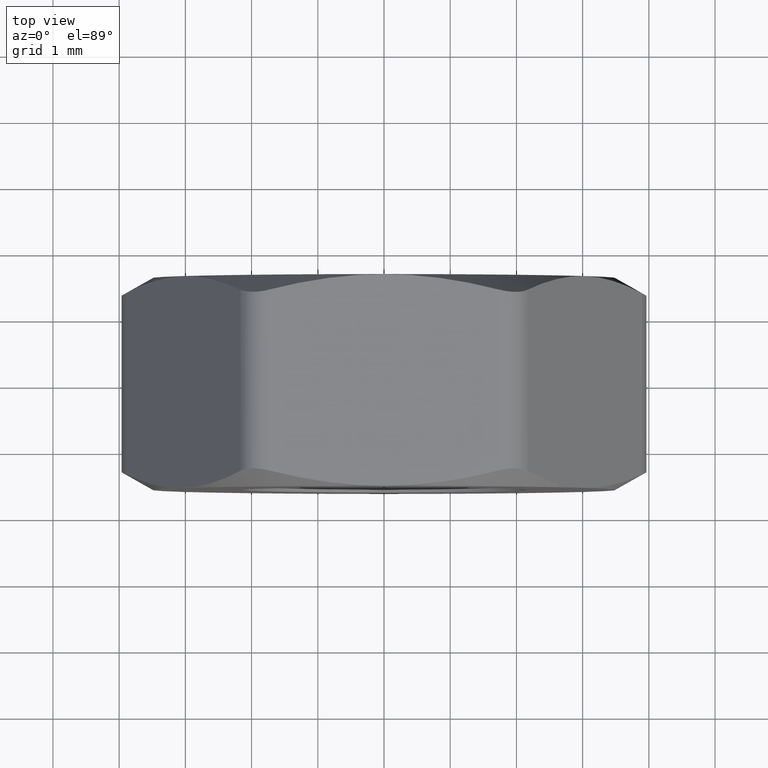
[diagram: clean part render]
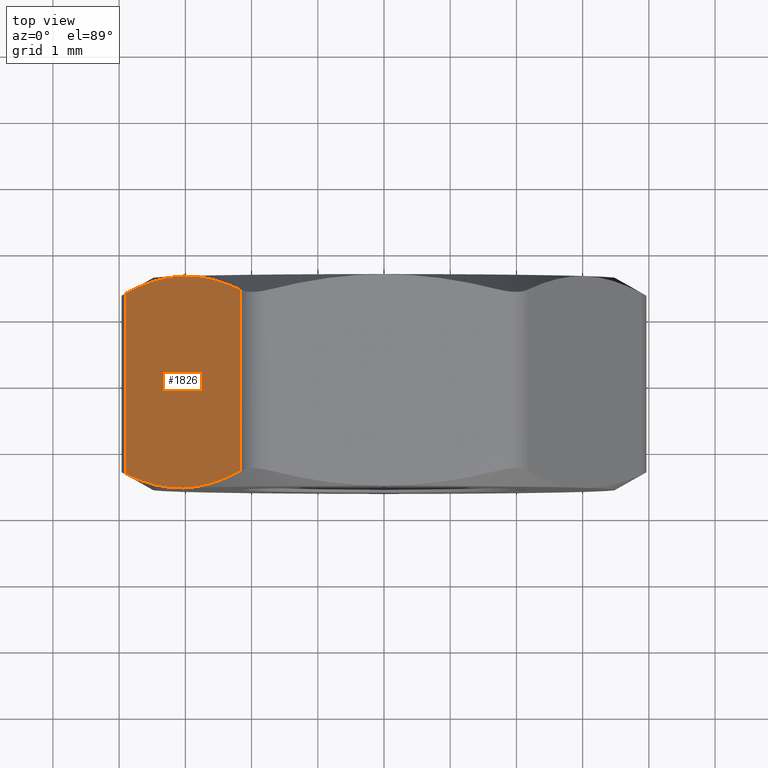
[diagram: same view with one face highlighted and labeled with its STEP entity id]
A machine part, top view. The second image highlights one B-rep face of the part: STEP entity #1826.
In plain terms, the highlighted planar face has unit normal (0.866, 0, -0.5).
Its self-contained STEP definition (entity closure, byte-faithful):
#172 = EDGE_CURVE ( 'NONE', #199, #1437, #639, .T. ) ;
#188 = CARTESIAN_POINT ( 'NONE',  ( -3.324242401370074000, 1.578227301213952500, 1.242243264152262500 ) ) ;
#199 = VERTEX_POINT ( 'NONE', #336 ) ;
#281 = CARTESIAN_POINT ( 'NONE',  ( -3.031088913245535200, -1.599999999999998500, 1.750000000000000700 ) ) ;
#287 = CARTESIAN_POINT ( 'NONE',  ( -2.165063509461098600, -1.366101065752245000, 3.249999999999998700 ) ) ;
#327 = CARTESIAN_POINT ( 'NONE',  ( -3.031088913245535200, -1.599999999999998500, 1.750000000000000700 ) ) ;
#336 = CARTESIAN_POINT ( 'NONE',  ( -3.897114317033262100, -1.366101065750560800, 0.2499999999943070800 ) ) ;
#392 = EDGE_CURVE ( 'NONE', #1437, #1464, #1167, .T. ) ;
#425 = CARTESIAN_POINT ( 'NONE',  ( -3.031088913245535200, 1.599999999999998500, 1.750000000000000700 ) ) ;
#446 = CARTESIAN_POINT ( 'NONE',  ( -2.165063509457811900, 1.366101065750561400, 3.250000000005691400 ) ) ;
#455 = VECTOR ( 'NONE', #1056, 1000.000000000000000 ) ;
#557 = ORIENTED_EDGE ( 'NONE', *, *, #598, .T. ) ;
#576 = EDGE_CURVE ( 'NONE', #877, #1568, #1970, .T. ) ;
#577 = ORIENTED_EDGE ( 'NONE', *, *, #392, .T. ) ;
#598 = EDGE_CURVE ( 'NONE', #1350, #199, #1239, .T. ) ;
#628 = CARTESIAN_POINT ( 'NONE',  ( -2.165063509457811900, 1.366101065750561400, 3.250000000005691400 ) ) ;
#635 = CARTESIAN_POINT ( 'NONE',  ( -3.031088913245535200, 1.599999999999998500, 1.750000000000000700 ) ) ;
#639 = B_SPLINE_CURVE_WITH_KNOTS ( 'NONE', 3,
 ( #962, #650, #954, #327 ),
 .UNSPECIFIED., .F., .F.,
 ( 4, 4 ),
 ( 0.0002971722857521895000, 0.002044882221487529700 ),
 .UNSPECIFIED. ) ;
#650 = CARTESIAN_POINT ( 'NONE',  ( -3.613280654127132100, -1.511465772224712700, 0.7416143250461021400 ) ) ;
#656 = CARTESIAN_POINT ( 'NONE',  ( -3.612771519549224500, 1.497437231825312600, 0.7424961720029259500 ) ) ;
#700 = CARTESIAN_POINT ( 'NONE',  ( -4.041451884327381400, 1.600000000000000100, -3.929497905598709000E-016 ) ) ;
#749 = CARTESIAN_POINT ( 'NONE',  ( -2.736813175116616000, 1.600000000000000300, 2.259700529874124600 ) ) ;
#759 = CARTESIAN_POINT ( 'NONE',  ( -3.897114317029975300, 1.366101065752243900, 0.2500000000000000600 ) ) ;
#790 = CARTESIAN_POINT ( 'NONE',  ( -3.031088913245535200, -1.599999999999998500, 1.750000000000000700 ) ) ;
#797 = CARTESIAN_POINT ( 'NONE',  ( -3.031088913245535200, 1.599999999999998500, 1.750000000000000700 ) ) ;
#803 = CARTESIAN_POINT ( 'NONE',  ( -3.177622754318770900, 1.600000000000000500, 1.496195942232937200 ) ) ;
#858 = CARTESIAN_POINT ( 'NONE',  ( -2.884555072172302600, -1.599999999999999900, 2.003804057767065000 ) ) ;
#877 = VERTEX_POINT ( 'NONE', #628 ) ;
#954 = CARTESIAN_POINT ( 'NONE',  ( -3.325364651374457000, -1.600000000000000300, 1.240299470125876300 ) ) ;
#962 = CARTESIAN_POINT ( 'NONE',  ( -3.897114317033262100, -1.366101065750560800, 0.2499999999943070800 ) ) ;
#975 = EDGE_LOOP ( 'NONE', ( #1739, #557, #1143, #577, #1520, #1640 ) ) ;
#984 = CARTESIAN_POINT ( 'NONE',  ( -3.755510572827378100, 1.438623072130310800, 0.4952648795008829400 ) ) ;
#998 = DIRECTION ( 'NONE',  ( 0.8660254037844387100, 0.0000000000000000000, -0.4999999999999999400 ) ) ;
#1005 = PLANE ( 'NONE',  #1300 ) ;
#1027 = DIRECTION ( 'NONE',  ( -0.4999999999999998900, 0.0000000000000000000, -0.8660254037844386000 ) ) ;
#1056 = DIRECTION ( 'NONE',  ( -0.0000000000000000000, 1.000000000000000000, -0.0000000000000000000 ) ) ;
#1073 = CARTESIAN_POINT ( 'NONE',  ( -2.448897172363941400, 1.511465772224713300, 2.758385674953897700 ) ) ;
#1143 = ORIENTED_EDGE ( 'NONE', *, *, #172, .T. ) ;
#1167 = B_SPLINE_CURVE_WITH_KNOTS ( 'NONE', 3,
 ( #281, #858, #1232, #1973, #1710, #287 ),
 .UNSPECIFIED., .F., .F.,
 ( 4, 2, 4 ),
 ( 0.002044882221487529700, 0.002915149854128580900, 0.003785417486769631700 ),
 .UNSPECIFIED. ) ;
#1213 = EDGE_CURVE ( 'NONE', #1464, #877, #2061, .T. ) ;
#1232 = CARTESIAN_POINT ( 'NONE',  ( -2.737935425120998600, -1.578227301213952300, 2.257756735847738800 ) ) ;
#1239 = LINE ( 'NONE', #1241, #2062 ) ;
#1241 = CARTESIAN_POINT ( 'NONE',  ( -3.897114317029975300, 1.600000000000000100, 0.2499999999999997200 ) ) ;
#1244 = CARTESIAN_POINT ( 'NONE',  ( -2.165063509461098600, -1.366101065752245000, 3.249999999999998700 ) ) ;
#1300 = AXIS2_PLACEMENT_3D ( 'NONE', #700, #998, #1027 ) ;
#1350 = VERTEX_POINT ( 'NONE', #759 ) ;
#1437 = VERTEX_POINT ( 'NONE', #790 ) ;
#1443 = CARTESIAN_POINT ( 'NONE',  ( -3.897114317029975300, 1.366101065752243900, 0.2500000000000000600 ) ) ;
#1459 = FACE_OUTER_BOUND ( 'NONE', #975, .T. ) ;
#1464 = VERTEX_POINT ( 'NONE', #1244 ) ;
#1520 = ORIENTED_EDGE ( 'NONE', *, *, #1213, .T. ) ;
#1568 = VERTEX_POINT ( 'NONE', #635 ) ;
#1640 = ORIENTED_EDGE ( 'NONE', *, *, #576, .T. ) ;
#1696 = CARTESIAN_POINT ( 'NONE',  ( -2.165063509461098200, 1.600000000000000100, 3.249999999999999600 ) ) ;
#1710 = CARTESIAN_POINT ( 'NONE',  ( -2.306667253663695000, -1.438623072130311300, 3.004735120499115700 ) ) ;
#1739 = ORIENTED_EDGE ( 'NONE', *, *, #1745, .T. ) ;
#1745 = EDGE_CURVE ( 'NONE', #1568, #1350, #2059, .T. ) ;
#1826 = ADVANCED_FACE ( 'NONE', ( #1459 ), #1005, .F. ) ;
#1970 = B_SPLINE_CURVE_WITH_KNOTS ( 'NONE', 3,
 ( #446, #1073, #749, #425 ),
 .UNSPECIFIED., .F., .F.,
 ( 4, 4 ),
 ( 0.0002971722857521903600, 0.002044882221487525800 ),
 .UNSPECIFIED. ) ;
#1973 = CARTESIAN_POINT ( 'NONE',  ( -2.449406306941847700, -1.497437231825312600, 2.757503827997073800 ) ) ;
#2042 = DIRECTION ( 'NONE',  ( 0.0000000000000000000, -1.000000000000000000, 0.0000000000000000000 ) ) ;
#2059 = B_SPLINE_CURVE_WITH_KNOTS ( 'NONE', 3,
 ( #797, #803, #188, #656, #984, #1443 ),
 .UNSPECIFIED., .F., .F.,
 ( 4, 2, 4 ),
 ( 0.002044882221487525800, 0.002915149854128578300, 0.003785417486769631700 ),
 .UNSPECIFIED. ) ;
#2061 = LINE ( 'NONE', #1696, #455 ) ;
#2062 = VECTOR ( 'NONE', #2042, 1000.000000000000000 ) ;